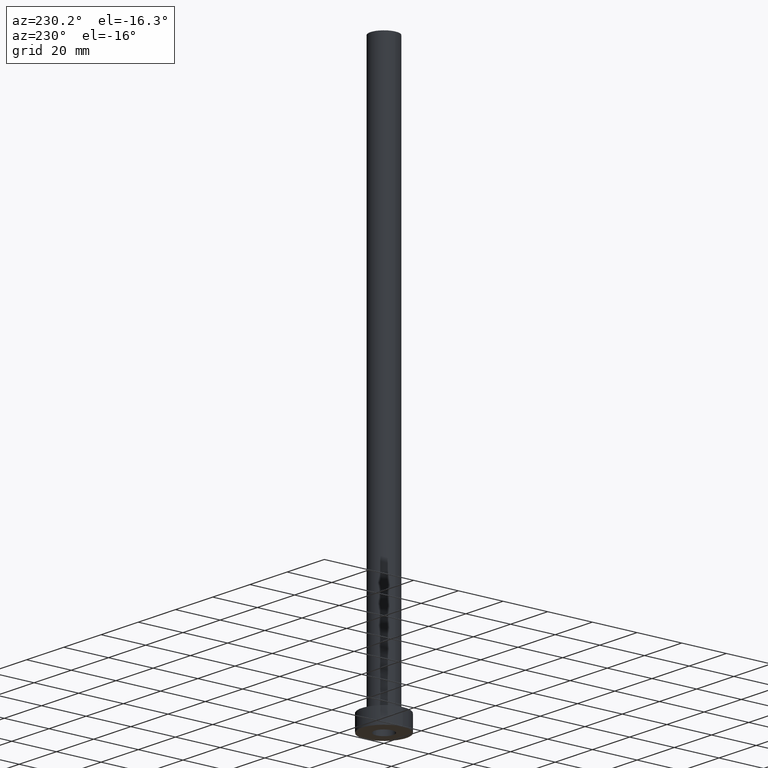
[diagram: clean part render]
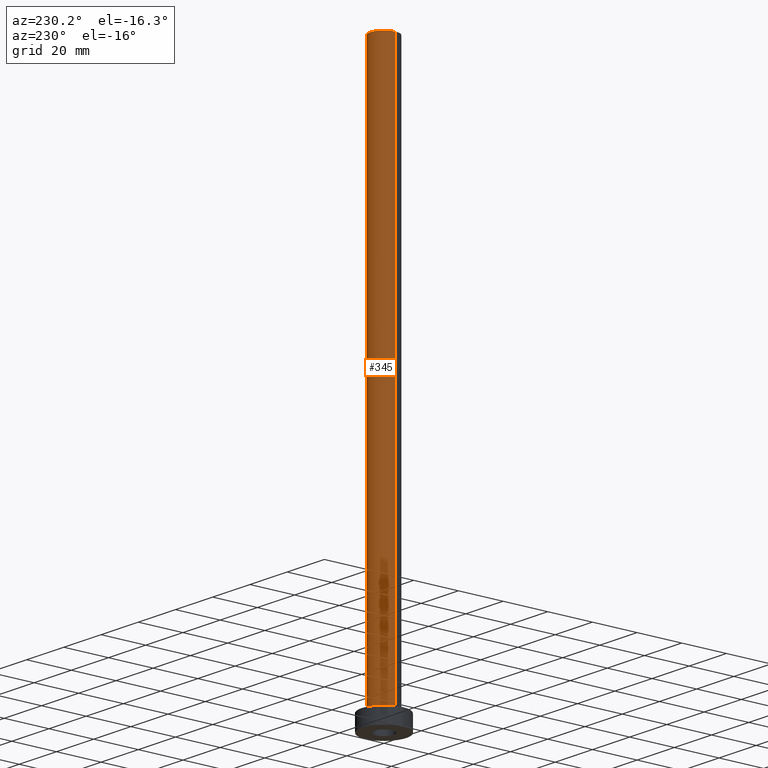
[diagram: same view with one face highlighted and labeled with its STEP entity id]
A machine part, auxiliary view. The second image highlights one B-rep face of the part: STEP entity #345.
In plain terms, the highlighted cylindrical surface (edge-blend (fillet) strip) has radius 6 mm, axis along (-0, -0, -1).
Its self-contained STEP definition (entity closure, byte-faithful):
#1 = CARTESIAN_POINT ( 'NONE',  ( 0.000000000000000000, 0.000000000000000000, 250.0000000000000000 ) ) ;
#17 = AXIS2_PLACEMENT_3D ( 'NONE', #1, #118, #141 ) ;
#20 = FACE_OUTER_BOUND ( 'NONE', #267, .T. ) ;
#41 = VERTEX_POINT ( 'NONE', #461 ) ;
#45 = CYLINDRICAL_SURFACE ( 'NONE', #137, 6.000000000000000888 ) ;
#58 = VECTOR ( 'NONE', #222, 1000.000000000000000 ) ;
#76 = VERTEX_POINT ( 'NONE', #342 ) ;
#79 = ORIENTED_EDGE ( 'NONE', *, *, #130, .F. ) ;
#114 = CARTESIAN_POINT ( 'NONE',  ( 6.000000000000000888, 7.347880794884120722E-16, 250.0000000000000000 ) ) ;
#118 = DIRECTION ( 'NONE',  ( 0.000000000000000000, 0.000000000000000000, 1.000000000000000000 ) ) ;
#130 = EDGE_CURVE ( 'NONE', #41, #263, #375, .T. ) ;
#137 = AXIS2_PLACEMENT_3D ( 'NONE', #190, #329, #185 ) ;
#141 = DIRECTION ( 'NONE',  ( 1.000000000000000000, 0.000000000000000000, 0.000000000000000000 ) ) ;
#142 = CARTESIAN_POINT ( 'NONE',  ( 6.000000000000000888, 7.347880794884120722E-16, 250.0000000000000000 ) ) ;
#155 = ORIENTED_EDGE ( 'NONE', *, *, #403, .T. ) ;
#164 = DIRECTION ( 'NONE',  ( 0.000000000000000000, 0.000000000000000000, 1.000000000000000000 ) ) ;
#180 = CIRCLE ( 'NONE', #291, 6.000000000000000888 ) ;
#185 = DIRECTION ( 'NONE',  ( -1.000000000000000000, 0.000000000000000000, 0.000000000000000000 ) ) ;
#190 = CARTESIAN_POINT ( 'NONE',  ( 0.000000000000000000, 0.000000000000000000, 250.0000000000000000 ) ) ;
#199 = CARTESIAN_POINT ( 'NONE',  ( -6.000000000000000888, 0.000000000000000000, 250.0000000000000000 ) ) ;
#201 = EDGE_CURVE ( 'NONE', #76, #263, #180, .T. ) ;
#217 = CIRCLE ( 'NONE', #17, 6.000000000000000888 ) ;
#222 = DIRECTION ( 'NONE',  ( -0.000000000000000000, -0.000000000000000000, -1.000000000000000000 ) ) ;
#227 = ORIENTED_EDGE ( 'NONE', *, *, #201, .T. ) ;
#263 = VERTEX_POINT ( 'NONE', #370 ) ;
#267 = EDGE_LOOP ( 'NONE', ( #433, #155, #227, #79 ) ) ;
#291 = AXIS2_PLACEMENT_3D ( 'NONE', #404, #164, #415 ) ;
#329 = DIRECTION ( 'NONE',  ( -0.000000000000000000, -0.000000000000000000, -1.000000000000000000 ) ) ;
#337 = DIRECTION ( 'NONE',  ( -0.000000000000000000, -0.000000000000000000, -1.000000000000000000 ) ) ;
#342 = CARTESIAN_POINT ( 'NONE',  ( 6.000000000000000888, 7.347880794884120722E-16, 7.700000000000012612 ) ) ;
#345 = ADVANCED_FACE ( 'NONE', ( #20 ), #45, .T. ) ;
#358 = LINE ( 'NONE', #114, #58 ) ;
#370 = CARTESIAN_POINT ( 'NONE',  ( -6.000000000000000888, 0.000000000000000000, 7.700000000000012612 ) ) ;
#375 = LINE ( 'NONE', #199, #421 ) ;
#403 = EDGE_CURVE ( 'NONE', #422, #76, #358, .T. ) ;
#404 = CARTESIAN_POINT ( 'NONE',  ( 0.000000000000000000, 0.000000000000000000, 7.700000000000012612 ) ) ;
#415 = DIRECTION ( 'NONE',  ( 1.000000000000000000, 0.000000000000000000, 0.000000000000000000 ) ) ;
#421 = VECTOR ( 'NONE', #337, 1000.000000000000000 ) ;
#422 = VERTEX_POINT ( 'NONE', #142 ) ;
#433 = ORIENTED_EDGE ( 'NONE', *, *, #452, .F. ) ;
#452 = EDGE_CURVE ( 'NONE', #422, #41, #217, .T. ) ;
#461 = CARTESIAN_POINT ( 'NONE',  ( -6.000000000000000888, 0.000000000000000000, 250.0000000000000000 ) ) ;